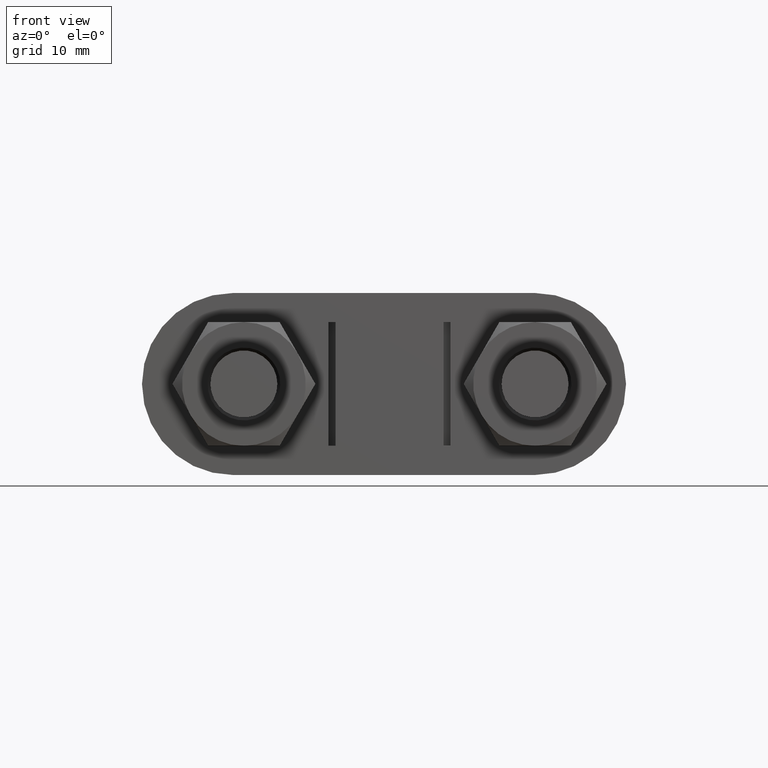
[diagram: clean part render]
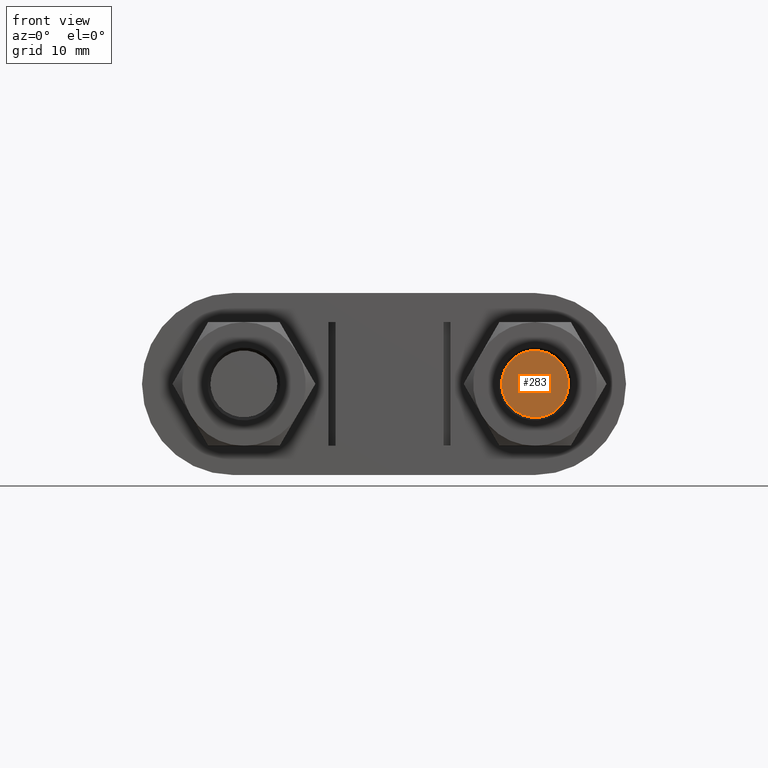
[diagram: same view with one face highlighted and labeled with its STEP entity id]
A machine part, front view. The second image highlights one B-rep face of the part: STEP entity #283.
In plain terms, the highlighted planar face has unit normal (-0, -1, -0).
Its self-contained STEP definition (entity closure, byte-faithful):
#283 = ADVANCED_FACE( '', ( #420 ), #421, .T. );
#420 = FACE_OUTER_BOUND( '', #1491, .T. );
#421 = PLANE( '', #1492 );
#1491 = EDGE_LOOP( '', ( #1826 ) );
#1492 = AXIS2_PLACEMENT_3D( '', #1827, #1828, #1829 );
#1826 = ORIENTED_EDGE( '', *, *, #2572, .T. );
#1827 = CARTESIAN_POINT( '', ( 20.0000000000000, -9.79685083057902E-015, 3.85751001454044E-017 ) );
#1828 = DIRECTION( '', ( -4.89842541528951E-016, -1.00000000000000, -6.12303176911189E-017 ) );
#1829 = DIRECTION( '', ( 1.00000000000000, -4.89842541528951E-016, -2.24949108273320E-032 ) );
#2572 = EDGE_CURVE( '', #2840, #2840, #2841, .T. );
#2840 = VERTEX_POINT( '', #3424 );
#2841 = CIRCLE( '', #3425, 4.60000000000000 );
#3424 = CARTESIAN_POINT( '', ( 24.6000000000000, -1.20501265216122E-014, 3.85751001454043E-017 ) );
#3425 = AXIS2_PLACEMENT_3D( '', #4038, #4039, #4040 );
#4038 = CARTESIAN_POINT( '', ( 20.0000000000000, -9.79685083057902E-015, 3.85751001454044E-017 ) );
#4039 = DIRECTION( '', ( -4.89842541528951E-016, -1.00000000000000, -6.12303176911189E-017 ) );
#4040 = DIRECTION( '', ( 1.00000000000000, -4.89842541528951E-016, -2.24949108273321E-032 ) );